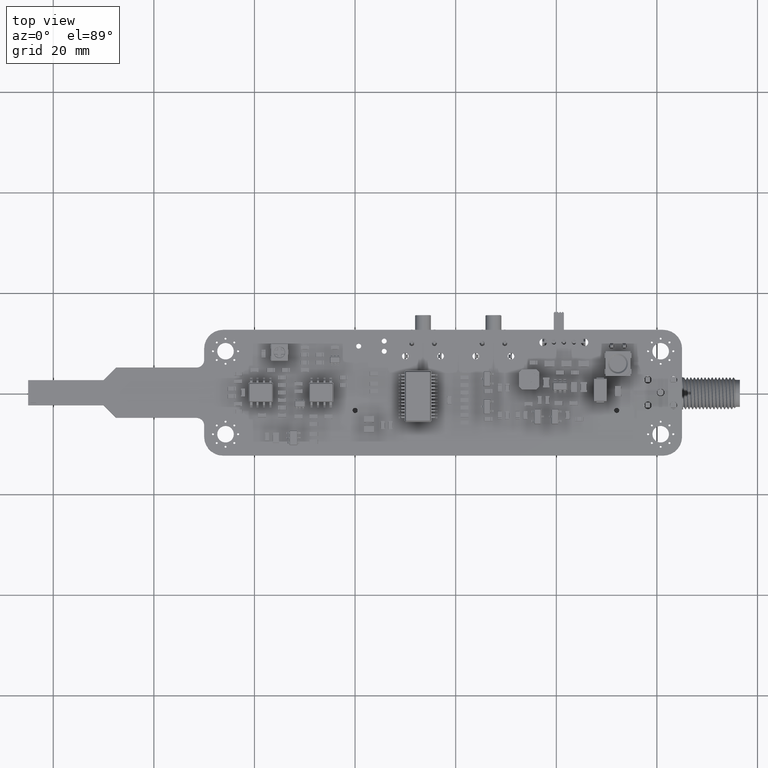
[diagram: clean part render]
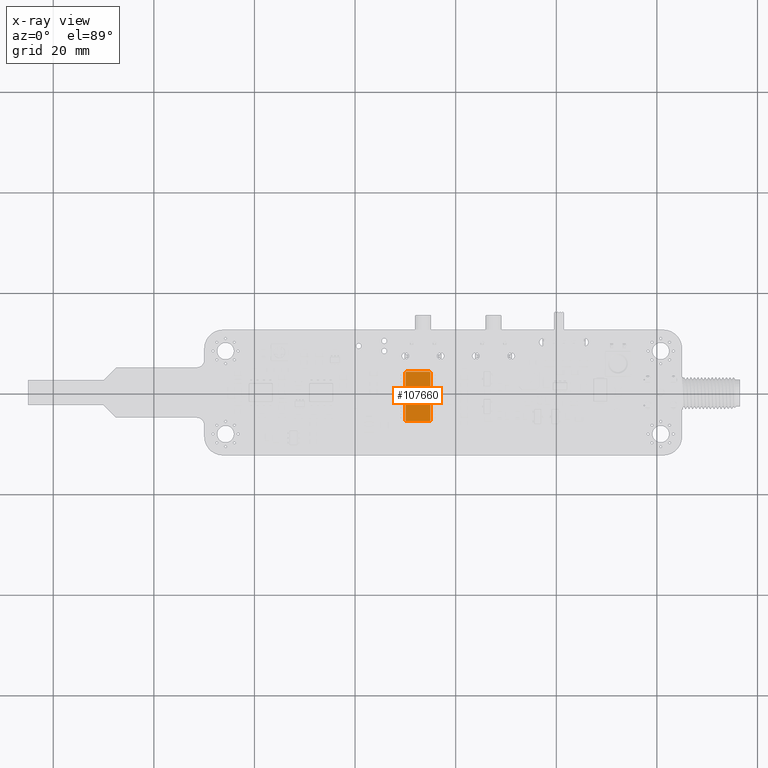
[diagram: x-ray — body ghosted, one internal face saturated and labeled with its STEP entity id]
A machine part, top view, then the same camera in x-ray: the body is ghosted and one INTERNAL B-rep face — a face not visible from any outside direction — is saturated and labeled: STEP entity #107660.
In plain terms, the highlighted planar face has unit normal (0, 0, 1).
Its self-contained STEP definition (entity closure, byte-faithful):
#105833 = B_SPLINE_SURFACE_WITH_KNOTS('',1,1,(
    (#105834,#105835)
    ,(#105836,#105837
    )),.UNSPECIFIED.,.F.,.F.,.F.,(2,2),(2,2),(0.,9.8),(0.,1.),
  .PIECEWISE_BEZIER_KNOTS.);
#105834 = CARTESIAN_POINT('',(2.45657352888,4.80328676444,0.1));
#105835 = CARTESIAN_POINT('',(2.65,4.9,1.01));
#105836 = CARTESIAN_POINT('',(2.45657352888,-4.80328676444,0.1));
#105837 = CARTESIAN_POINT('',(2.65,-4.9,1.01));
#106427 = EDGE_CURVE('',#106428,#106430,#106432,.T.);
#106428 = VERTEX_POINT('',#106429);
#106429 = CARTESIAN_POINT('',(2.45657352888,4.80328676444,0.1));
#106430 = VERTEX_POINT('',#106431);
#106431 = CARTESIAN_POINT('',(2.45657352888,-4.80328676444,0.1));
#106432 = SURFACE_CURVE('',#106433,(#106437,#106443),.PCURVE_S1.);
#106433 = LINE('',#106434,#106435);
#106434 = CARTESIAN_POINT('',(2.45657352888,4.80328676444,0.1));
#106435 = VECTOR('',#106436,1.);
#106436 = DIRECTION('',(2.22044604925E-16,-1.,0.));
#106437 = PCURVE('',#105833,#106438);
#106438 = DEFINITIONAL_REPRESENTATION('',(#106439),#106442);
#106439 = B_SPLINE_CURVE_WITH_KNOTS('',1,(#106440,#106441),
  .UNSPECIFIED.,.F.,.F.,(2,2),(0.,9.60657352888),
  .PIECEWISE_BEZIER_KNOTS.);
#106440 = CARTESIAN_POINT('',(-1.294936447382E-15,-1.255056460357E-16));
#106441 = CARTESIAN_POINT('',(9.8,3.888200288003E-16));
#106442 = ( GEOMETRIC_REPRESENTATION_CONTEXT(2) 
PARAMETRIC_REPRESENTATION_CONTEXT() REPRESENTATION_CONTEXT('2D SPACE',''
  ) );
#106443 = PCURVE('',#106444,#106449);
#106444 = PLANE('',#106445);
#106445 = AXIS2_PLACEMENT_3D('',#106446,#106447,#106448);
#106446 = CARTESIAN_POINT('',(-2.35328676444,4.90657352888,0.1));
#106447 = DIRECTION('',(0.,0.,1.));
#106448 = DIRECTION('',(0.432451974604,-0.901656968953,0.));
#106449 = DEFINITIONAL_REPRESENTATION('',(#106450),#106454);
#106450 = LINE('',#106451,#106452);
#106451 = CARTESIAN_POINT('',(2.173162812373,4.292177487929));
#106452 = VECTOR('',#106453,1.);
#106453 = DIRECTION('',(0.901656968953,-0.432451974604));
#106454 = ( GEOMETRIC_REPRESENTATION_CONTEXT(2) 
PARAMETRIC_REPRESENTATION_CONTEXT() REPRESENTATION_CONTEXT('2D SPACE',''
  ) );
#106471 = B_SPLINE_SURFACE_WITH_KNOTS('',1,1,(
    (#106472,#106473)
    ,(#106474,#106475
    )),.UNSPECIFIED.,.F.,.F.,.F.,(2,2),(2,2),(0.,0.282842712475),(0.,1.)
  ,.PIECEWISE_BEZIER_KNOTS.);
#106472 = CARTESIAN_POINT('',(2.45657352888,-4.80328676444,0.1));
#106473 = CARTESIAN_POINT('',(2.65,-4.9,1.01));
#106474 = CARTESIAN_POINT('',(2.35328676444,-4.90657352888,0.1));
#106475 = CARTESIAN_POINT('',(2.45,-5.1,1.01));
#107269 = B_SPLINE_SURFACE_WITH_KNOTS('',1,1,(
    (#107270,#107271)
    ,(#107272,#107273
    )),.UNSPECIFIED.,.F.,.F.,.F.,(2,2),(2,2),(0.,0.282842712475),(0.,1.)
  ,.PIECEWISE_BEZIER_KNOTS.);
#107270 = CARTESIAN_POINT('',(2.35328676444,4.90657352888,0.1));
#107271 = CARTESIAN_POINT('',(2.45,5.1,1.01));
#107272 = CARTESIAN_POINT('',(2.45657352888,4.80328676444,0.1));
#107273 = CARTESIAN_POINT('',(2.65,4.9,1.01));
#107660 = ADVANCED_FACE('',(#107661),#106444,.F.);
#107661 = FACE_BOUND('',#107662,.F.);
#107662 = EDGE_LOOP('',(#107663,#107692,#107719,#107746,#107773,#107793,
    #107794,#107816));
#107663 = ORIENTED_EDGE('',*,*,#107664,.F.);
#107664 = EDGE_CURVE('',#107665,#107667,#107669,.T.);
#107665 = VERTEX_POINT('',#107666);
#107666 = CARTESIAN_POINT('',(-2.45657352888,4.80328676444,0.1));
#107667 = VERTEX_POINT('',#107668);
#107668 = CARTESIAN_POINT('',(-2.35328676444,4.90657352888,0.1));
#107669 = SURFACE_CURVE('',#107670,(#107674,#107681),.PCURVE_S1.);
#107670 = LINE('',#107671,#107672);
#107671 = CARTESIAN_POINT('',(-2.45657352888,4.80328676444,0.1));
#107672 = VECTOR('',#107673,1.);
#107673 = DIRECTION('',(0.707106781187,0.707106781187,0.));
#107674 = PCURVE('',#106444,#107675);
#107675 = DEFINITIONAL_REPRESENTATION('',(#107676),#107680);
#107676 = LINE('',#107677,#107678);
#107677 = CARTESIAN_POINT('',(4.846266572539E-02,-0.13779579619));
#107678 = VECTOR('',#107679,1.);
#107679 = DIRECTION('',(-0.331778033271,0.943357480831));
#107680 = ( GEOMETRIC_REPRESENTATION_CONTEXT(2) 
PARAMETRIC_REPRESENTATION_CONTEXT() REPRESENTATION_CONTEXT('2D SPACE',''
  ) );
#107681 = PCURVE('',#107682,#107687);
#107682 = B_SPLINE_SURFACE_WITH_KNOTS('',1,1,(
    (#107683,#107684)
    ,(#107685,#107686
    )),.UNSPECIFIED.,.F.,.F.,.F.,(2,2),(2,2),(0.,0.282842712475),(0.,1.)
  ,.PIECEWISE_BEZIER_KNOTS.);
#107683 = CARTESIAN_POINT('',(-2.45657352888,4.80328676444,0.1));
#107684 = CARTESIAN_POINT('',(-2.65,4.9,1.01));
#107685 = CARTESIAN_POINT('',(-2.35328676444,4.90657352888,0.1));
#107686 = CARTESIAN_POINT('',(-2.45,5.1,1.01));
#107687 = DEFINITIONAL_REPRESENTATION('',(#107688),#107691);
#107688 = B_SPLINE_CURVE_WITH_KNOTS('',1,(#107689,#107690),
  .UNSPECIFIED.,.F.,.F.,(2,2),(0.,0.146069543085),
  .PIECEWISE_BEZIER_KNOTS.);
#107689 = CARTESIAN_POINT('',(-1.227196788301E-16,-9.097549729277E-17));
#107690 = CARTESIAN_POINT('',(0.282842712475,-5.901185703419E-17));
#107691 = ( GEOMETRIC_REPRESENTATION_CONTEXT(2) 
PARAMETRIC_REPRESENTATION_CONTEXT() REPRESENTATION_CONTEXT('2D SPACE',''
  ) );
#107692 = ORIENTED_EDGE('',*,*,#107693,.F.);
#107693 = EDGE_CURVE('',#107694,#107665,#107696,.T.);
#107694 = VERTEX_POINT('',#107695);
#107695 = CARTESIAN_POINT('',(-2.45657352888,-4.80328676444,0.1));
#107696 = SURFACE_CURVE('',#107697,(#107701,#107708),.PCURVE_S1.);
#107697 = LINE('',#107698,#107699);
#107698 = CARTESIAN_POINT('',(-2.45657352888,-4.80328676444,0.1));
#107699 = VECTOR('',#107700,1.);
#107700 = DIRECTION('',(-2.22044604925E-16,1.,0.));
#107701 = PCURVE('',#106444,#107702);
#107702 = DEFINITIONAL_REPRESENTATION('',(#107703),#107707);
#107703 = LINE('',#107704,#107705);
#107704 = CARTESIAN_POINT('',(8.710296635798,-4.292177487932));
#107705 = VECTOR('',#107706,1.);
#107706 = DIRECTION('',(-0.901656968953,0.432451974604));
#107707 = ( GEOMETRIC_REPRESENTATION_CONTEXT(2) 
PARAMETRIC_REPRESENTATION_CONTEXT() REPRESENTATION_CONTEXT('2D SPACE',''
  ) );
#107708 = PCURVE('',#107709,#107714);
#107709 = B_SPLINE_SURFACE_WITH_KNOTS('',1,1,(
    (#107710,#107711)
    ,(#107712,#107713
    )),.UNSPECIFIED.,.F.,.F.,.F.,(2,2),(2,2),(0.,9.8),(0.,1.),
  .PIECEWISE_BEZIER_KNOTS.);
#107710 = CARTESIAN_POINT('',(-2.45657352888,-4.80328676444,0.1));
#107711 = CARTESIAN_POINT('',(-2.65,-4.9,1.01));
#107712 = CARTESIAN_POINT('',(-2.45657352888,4.80328676444,0.1));
#107713 = CARTESIAN_POINT('',(-2.65,4.9,1.01));
#107714 = DEFINITIONAL_REPRESENTATION('',(#107715),#107718);
#107715 = B_SPLINE_CURVE_WITH_KNOTS('',1,(#107716,#107717),
  .UNSPECIFIED.,.F.,.F.,(2,2),(0.,9.60657352888),
  .PIECEWISE_BEZIER_KNOTS.);
#107716 = CARTESIAN_POINT('',(-1.294936447382E-15,-1.255056460357E-16));
#107717 = CARTESIAN_POINT('',(9.8,3.888200288003E-16));
#107718 = ( GEOMETRIC_REPRESENTATION_CONTEXT(2) 
PARAMETRIC_REPRESENTATION_CONTEXT() REPRESENTATION_CONTEXT('2D SPACE',''
  ) );
#107719 = ORIENTED_EDGE('',*,*,#107720,.F.);
#107720 = EDGE_CURVE('',#107721,#107694,#107723,.T.);
#107721 = VERTEX_POINT('',#107722);
#107722 = CARTESIAN_POINT('',(-2.35328676444,-4.90657352888,0.1));
#107723 = SURFACE_CURVE('',#107724,(#107728,#107735),.PCURVE_S1.);
#107724 = LINE('',#107725,#107726);
#107725 = CARTESIAN_POINT('',(-2.35328676444,-4.90657352888,0.1));
#107726 = VECTOR('',#107727,1.);
#107727 = DIRECTION('',(-0.707106781187,0.707106781187,0.));
#107728 = PCURVE('',#106444,#107729);
#107729 = DEFINITIONAL_REPRESENTATION('',(#107730),#107734);
#107730 = LINE('',#107731,#107732);
#107731 = CARTESIAN_POINT('',(8.848092431988,-4.243714822207));
#107732 = VECTOR('',#107733,1.);
#107733 = DIRECTION('',(-0.943357480831,-0.331778033271));
#107734 = ( GEOMETRIC_REPRESENTATION_CONTEXT(2) 
PARAMETRIC_REPRESENTATION_CONTEXT() REPRESENTATION_CONTEXT('2D SPACE',''
  ) );
#107735 = PCURVE('',#107736,#107741);
#107736 = B_SPLINE_SURFACE_WITH_KNOTS('',1,1,(
    (#107737,#107738)
    ,(#107739,#107740
    )),.UNSPECIFIED.,.F.,.F.,.F.,(2,2),(2,2),(0.,0.282842712475),(0.,1.)
  ,.PIECEWISE_BEZIER_KNOTS.);
#107737 = CARTESIAN_POINT('',(-2.35328676444,-4.90657352888,0.1));
#107738 = CARTESIAN_POINT('',(-2.45,-5.1,1.01));
#107739 = CARTESIAN_POINT('',(-2.45657352888,-4.80328676444,0.1));
#107740 = CARTESIAN_POINT('',(-2.65,-4.9,1.01));
#107741 = DEFINITIONAL_REPRESENTATION('',(#107742),#107745);
#107742 = B_SPLINE_CURVE_WITH_KNOTS('',1,(#107743,#107744),
  .UNSPECIFIED.,.F.,.F.,(2,2),(0.,0.146069543085),
  .PIECEWISE_BEZIER_KNOTS.);
#107743 = CARTESIAN_POINT('',(-1.264653657978E-16,-5.901863329776E-17));
#107744 = CARTESIAN_POINT('',(0.282842712475,-9.097549729091E-17));
#107745 = ( GEOMETRIC_REPRESENTATION_CONTEXT(2) 
PARAMETRIC_REPRESENTATION_CONTEXT() REPRESENTATION_CONTEXT('2D SPACE',''
  ) );
#107746 = ORIENTED_EDGE('',*,*,#107747,.F.);
#107747 = EDGE_CURVE('',#107748,#107721,#107750,.T.);
#107748 = VERTEX_POINT('',#107749);
#107749 = CARTESIAN_POINT('',(2.35328676444,-4.90657352888,0.1));
#107750 = SURFACE_CURVE('',#107751,(#107755,#107762),.PCURVE_S1.);
#107751 = LINE('',#107752,#107753);
#107752 = CARTESIAN_POINT('',(2.35328676444,-4.90657352888,0.1));
#107753 = VECTOR('',#107754,1.);
#107754 = DIRECTION('',(-1.,-2.22044604925E-16,0.));
#107755 = PCURVE('',#106444,#107756);
#107756 = DEFINITIONAL_REPRESENTATION('',(#107757),#107761);
#107757 = LINE('',#107758,#107759);
#107758 = CARTESIAN_POINT('',(10.883459448171,-3.378630708539E-12));
#107759 = VECTOR('',#107760,1.);
#107760 = DIRECTION('',(-0.432451974604,-0.901656968953));
#107761 = ( GEOMETRIC_REPRESENTATION_CONTEXT(2) 
PARAMETRIC_REPRESENTATION_CONTEXT() REPRESENTATION_CONTEXT('2D SPACE',''
  ) );
#107762 = PCURVE('',#107763,#107768);
#107763 = B_SPLINE_SURFACE_WITH_KNOTS('',1,1,(
    (#107764,#107765)
    ,(#107766,#107767
    )),.UNSPECIFIED.,.F.,.F.,.F.,(2,2),(2,2),(0.,4.9),(0.,1.),
  .PIECEWISE_BEZIER_KNOTS.);
#107764 = CARTESIAN_POINT('',(2.35328676444,-4.90657352888,0.1));
#107765 = CARTESIAN_POINT('',(2.45,-5.1,1.01));
#107766 = CARTESIAN_POINT('',(-2.35328676444,-4.90657352888,0.1));
#107767 = CARTESIAN_POINT('',(-2.45,-5.1,1.01));
#107768 = DEFINITIONAL_REPRESENTATION('',(#107769),#107772);
#107769 = B_SPLINE_CURVE_WITH_KNOTS('',1,(#107770,#107771),
  .UNSPECIFIED.,.F.,.F.,(2,2),(0.,4.70657352888),
  .PIECEWISE_BEZIER_KNOTS.);
#107770 = CARTESIAN_POINT('',(-1.397495605263E-16,-1.307386304731E-16));
#107771 = CARTESIAN_POINT('',(4.9,9.112313610368E-17));
#107772 = ( GEOMETRIC_REPRESENTATION_CONTEXT(2) 
PARAMETRIC_REPRESENTATION_CONTEXT() REPRESENTATION_CONTEXT('2D SPACE',''
  ) );
#107773 = ORIENTED_EDGE('',*,*,#107774,.F.);
#107774 = EDGE_CURVE('',#106430,#107748,#107775,.T.);
#107775 = SURFACE_CURVE('',#107776,(#107780,#107787),.PCURVE_S1.);
#107776 = LINE('',#107777,#107778);
#107777 = CARTESIAN_POINT('',(2.45657352888,-4.80328676444,0.1));
#107778 = VECTOR('',#107779,1.);
#107779 = DIRECTION('',(-0.707106781187,-0.707106781187,0.));
#107780 = PCURVE('',#106444,#107781);
#107781 = DEFINITIONAL_REPRESENTATION('',(#107782),#107786);
#107782 = LINE('',#107783,#107784);
#107783 = CARTESIAN_POINT('',(10.834996782445,0.137795796187));
#107784 = VECTOR('',#107785,1.);
#107785 = DIRECTION('',(0.331778033271,-0.943357480831));
#107786 = ( GEOMETRIC_REPRESENTATION_CONTEXT(2) 
PARAMETRIC_REPRESENTATION_CONTEXT() REPRESENTATION_CONTEXT('2D SPACE',''
  ) );
#107787 = PCURVE('',#106471,#107788);
#107788 = DEFINITIONAL_REPRESENTATION('',(#107789),#107792);
#107789 = B_SPLINE_CURVE_WITH_KNOTS('',1,(#107790,#107791),
  .UNSPECIFIED.,.F.,.F.,(2,2),(0.,0.146069543085),
  .PIECEWISE_BEZIER_KNOTS.);
#107790 = CARTESIAN_POINT('',(-1.227196788301E-16,-9.097549729277E-17));
#107791 = CARTESIAN_POINT('',(0.282842712475,-5.901185703419E-17));
#107792 = ( GEOMETRIC_REPRESENTATION_CONTEXT(2) 
PARAMETRIC_REPRESENTATION_CONTEXT() REPRESENTATION_CONTEXT('2D SPACE',''
  ) );
#107793 = ORIENTED_EDGE('',*,*,#106427,.F.);
#107794 = ORIENTED_EDGE('',*,*,#107795,.F.);
#107795 = EDGE_CURVE('',#107796,#106428,#107798,.T.);
#107796 = VERTEX_POINT('',#107797);
#107797 = CARTESIAN_POINT('',(2.35328676444,4.90657352888,0.1));
#107798 = SURFACE_CURVE('',#107799,(#107803,#107810),.PCURVE_S1.);
#107799 = LINE('',#107800,#107801);
#107800 = CARTESIAN_POINT('',(2.35328676444,4.90657352888,0.1));
#107801 = VECTOR('',#107802,1.);
#107802 = DIRECTION('',(0.707106781187,-0.707106781187,0.));
#107803 = PCURVE('',#106444,#107804);
#107804 = DEFINITIONAL_REPRESENTATION('',(#107805),#107809);
#107805 = LINE('',#107806,#107807);
#107806 = CARTESIAN_POINT('',(2.035367016183,4.243714822203));
#107807 = VECTOR('',#107808,1.);
#107808 = DIRECTION('',(0.943357480831,0.331778033271));
#107809 = ( GEOMETRIC_REPRESENTATION_CONTEXT(2) 
PARAMETRIC_REPRESENTATION_CONTEXT() REPRESENTATION_CONTEXT('2D SPACE',''
  ) );
#107810 = PCURVE('',#107269,#107811);
#107811 = DEFINITIONAL_REPRESENTATION('',(#107812),#107815);
#107812 = B_SPLINE_CURVE_WITH_KNOTS('',1,(#107813,#107814),
  .UNSPECIFIED.,.F.,.F.,(2,2),(0.,0.146069543085),
  .PIECEWISE_BEZIER_KNOTS.);
#107813 = CARTESIAN_POINT('',(-1.264653657978E-16,-5.901863329776E-17));
#107814 = CARTESIAN_POINT('',(0.282842712475,-9.097549729091E-17));
#107815 = ( GEOMETRIC_REPRESENTATION_CONTEXT(2) 
PARAMETRIC_REPRESENTATION_CONTEXT() REPRESENTATION_CONTEXT('2D SPACE',''
  ) );
#107816 = ORIENTED_EDGE('',*,*,#107817,.F.);
#107817 = EDGE_CURVE('',#107667,#107796,#107818,.T.);
#107818 = SURFACE_CURVE('',#107819,(#107823,#107830),.PCURVE_S1.);
#107819 = LINE('',#107820,#107821);
#107820 = CARTESIAN_POINT('',(-2.35328676444,4.90657352888,0.1));
#107821 = VECTOR('',#107822,1.);
#107822 = DIRECTION('',(1.,2.22044604925E-16,0.));
#107823 = PCURVE('',#106444,#107824);
#107824 = DEFINITIONAL_REPRESENTATION('',(#107825),#107829);
#107825 = LINE('',#107826,#107827);
#107826 = CARTESIAN_POINT('',(0.,0.));
#107827 = VECTOR('',#107828,1.);
#107828 = DIRECTION('',(0.432451974604,0.901656968953));
#107829 = ( GEOMETRIC_REPRESENTATION_CONTEXT(2) 
PARAMETRIC_REPRESENTATION_CONTEXT() REPRESENTATION_CONTEXT('2D SPACE',''
  ) );
#107830 = PCURVE('',#107831,#107836);
#107831 = B_SPLINE_SURFACE_WITH_KNOTS('',1,1,(
    (#107832,#107833)
    ,(#107834,#107835
    )),.UNSPECIFIED.,.F.,.F.,.F.,(2,2),(2,2),(0.,4.9),(0.,1.),
  .PIECEWISE_BEZIER_KNOTS.);
#107832 = CARTESIAN_POINT('',(-2.35328676444,4.90657352888,0.1));
#107833 = CARTESIAN_POINT('',(-2.45,5.1,1.01));
#107834 = CARTESIAN_POINT('',(2.35328676444,4.90657352888,0.1));
#107835 = CARTESIAN_POINT('',(2.45,5.1,1.01));
#107836 = DEFINITIONAL_REPRESENTATION('',(#107837),#107840);
#107837 = B_SPLINE_CURVE_WITH_KNOTS('',1,(#107838,#107839),
  .UNSPECIFIED.,.F.,.F.,(2,2),(0.,4.70657352888),
  .PIECEWISE_BEZIER_KNOTS.);
#107838 = CARTESIAN_POINT('',(-1.397495605263E-16,-1.307386304731E-16));
#107839 = CARTESIAN_POINT('',(4.9,9.112313610368E-17));
#107840 = ( GEOMETRIC_REPRESENTATION_CONTEXT(2) 
PARAMETRIC_REPRESENTATION_CONTEXT() REPRESENTATION_CONTEXT('2D SPACE',''
  ) );